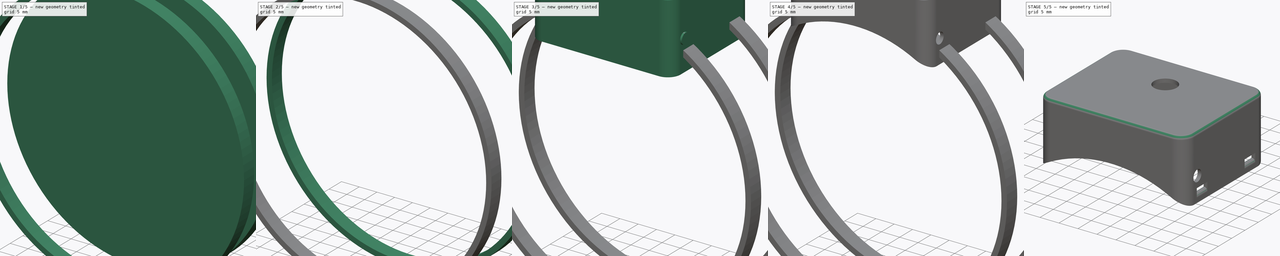
[diagram: build sequence overview — one tinted view per stage of 5, left to right]
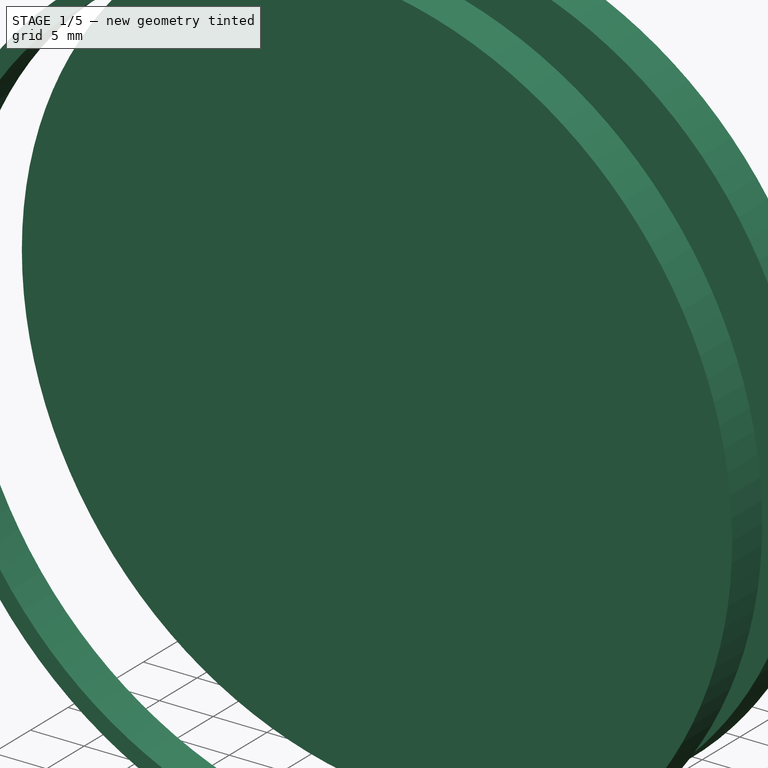
[diagram: stage 1 of 5 — iso view after this stage's code; geometry added in this stage tinted green]
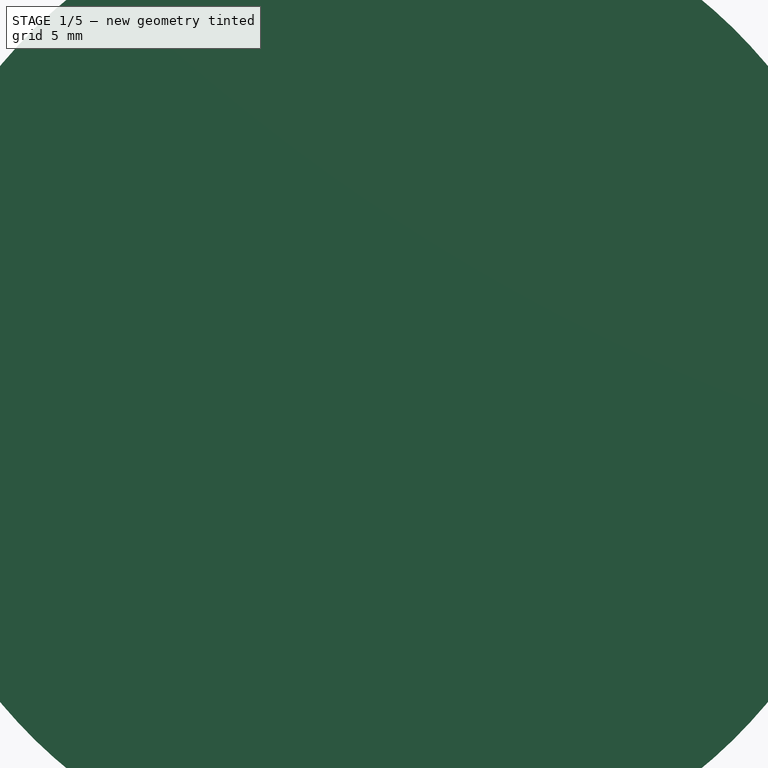
[diagram: stage 1 of 5 — front view after this stage's code; geometry added in this stage tinted green]
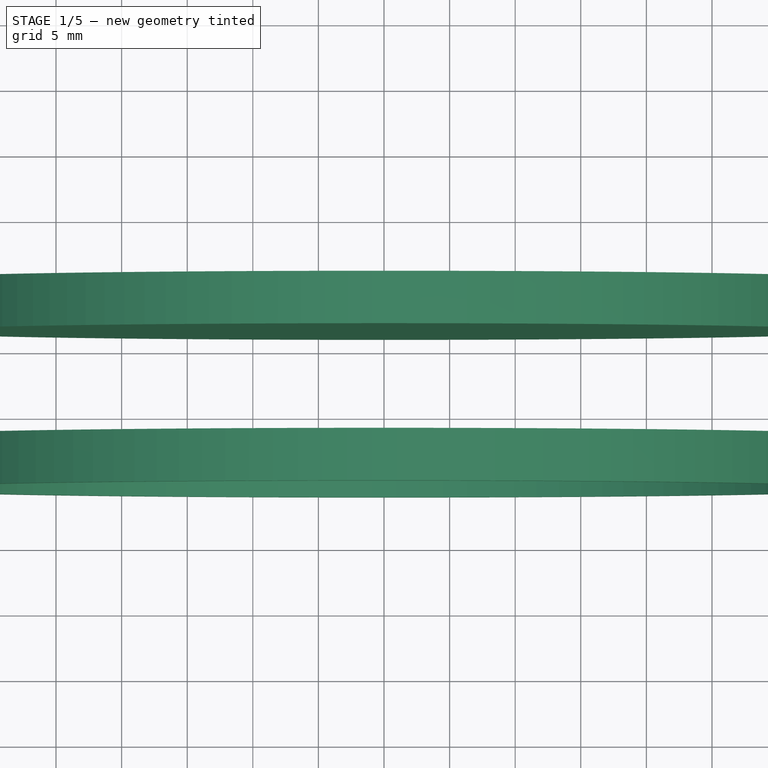
[diagram: stage 1 of 5 — top view after this stage's code; geometry added in this stage tinted green]
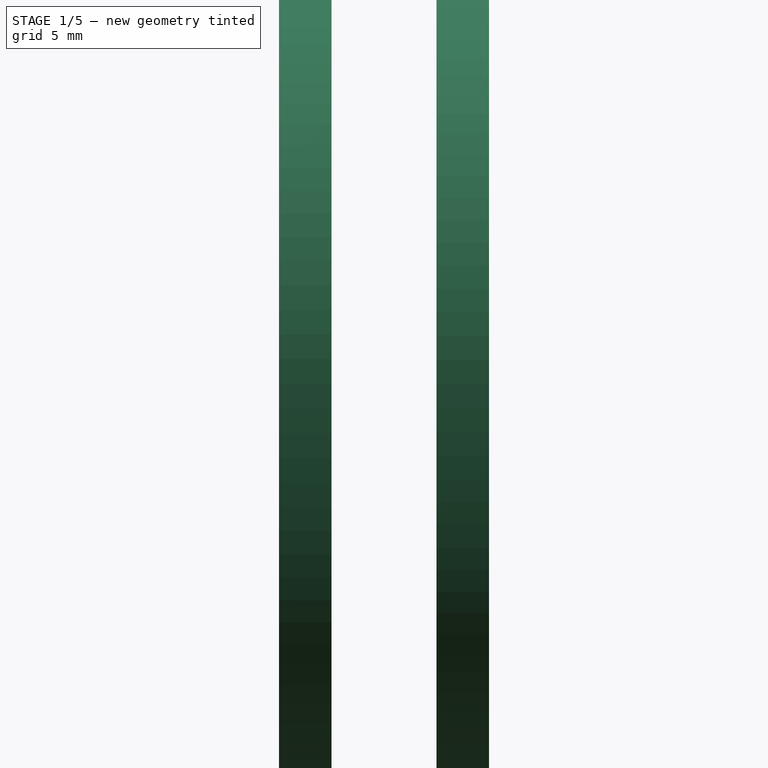
[diagram: stage 1 of 5 — right view after this stage's code; geometry added in this stage tinted green]
FCSTD DOCUMENT  (FreeCAD 0.18R16148 (Git))
Label: heng-dimmer-housing
License: All rights reserved
LicenseURL: http://en.wikipedia.org/wiki/All_rights_reserved
objects: Part::Cylinder×6, Part::Cut×5, Sketcher::SketchObject×3, Part::Fillet×3, PartDesign::Pad×2, PartDesign::Hole×1, PartDesign::Body×1, Part::MultiFuse×1
note: 25 computed .brp shape members not serialized (recipe doc carries the construction recipe); baked Part::Feature solids carry a one-line shape summary decoded from their .brp

FEATURE [Part::Cylinder] Cylinder003
  Angle = 360
  AttacherType = Attacher::AttachEngine3D
  Height = 4
  Placement = pos=(0,0,-45) rot=(1,0,0;1.5708rad)
  Radius = 36.5
FEATURE [Part::Cylinder] Cylinder004
  Angle = 360
  AttacherType = Attacher::AttachEngine3D
  Height = 4
  Placement = pos=(0,0,-45) rot=(1,0,0;1.5708rad)
  Radius = 36.5
FEATURE [Part::Cylinder] Cylinder005
  Angle = 360
  AttacherType = Attacher::AttachEngine3D
  Height = 4
  Placement = pos=(0,0,-45) rot=(1,0,0;1.5708rad)
  Radius = 38
FEATURE [Part::Cut] Cut003
  Base = -> Cylinder005
  Placement = pos=(0,-12,0) rot=(0,0,1;0rad)
  Tool = -> Cylinder004
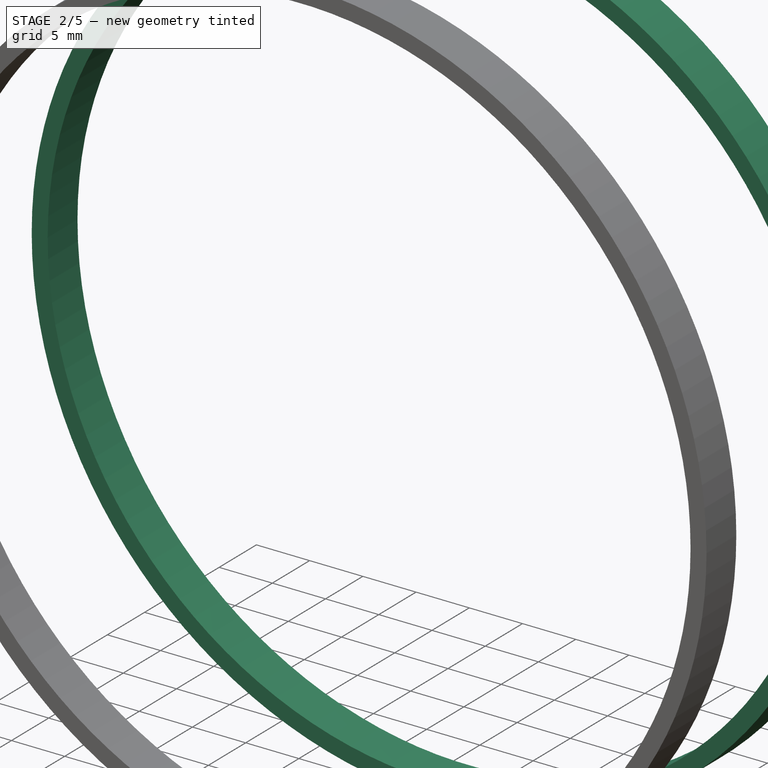
[diagram: stage 2 of 5 — iso view after this stage's code; geometry added in this stage tinted green]
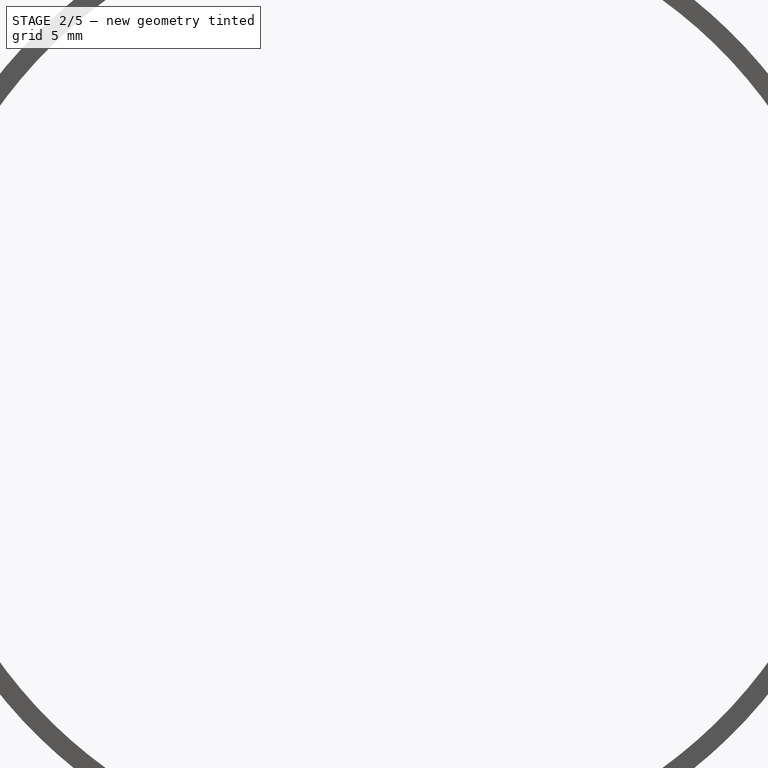
[diagram: stage 2 of 5 — front view after this stage's code; geometry added in this stage tinted green]
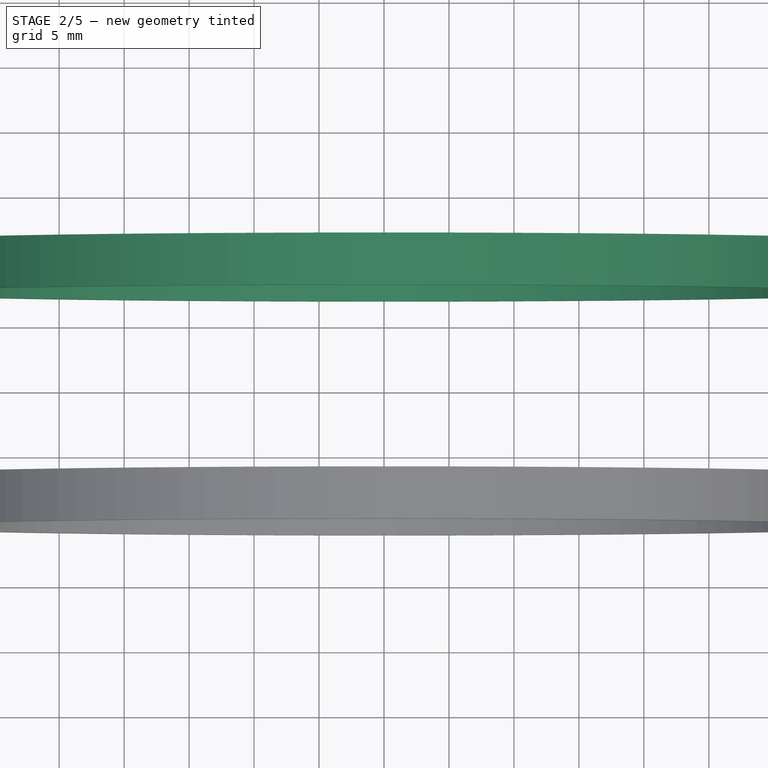
[diagram: stage 2 of 5 — top view after this stage's code; geometry added in this stage tinted green]
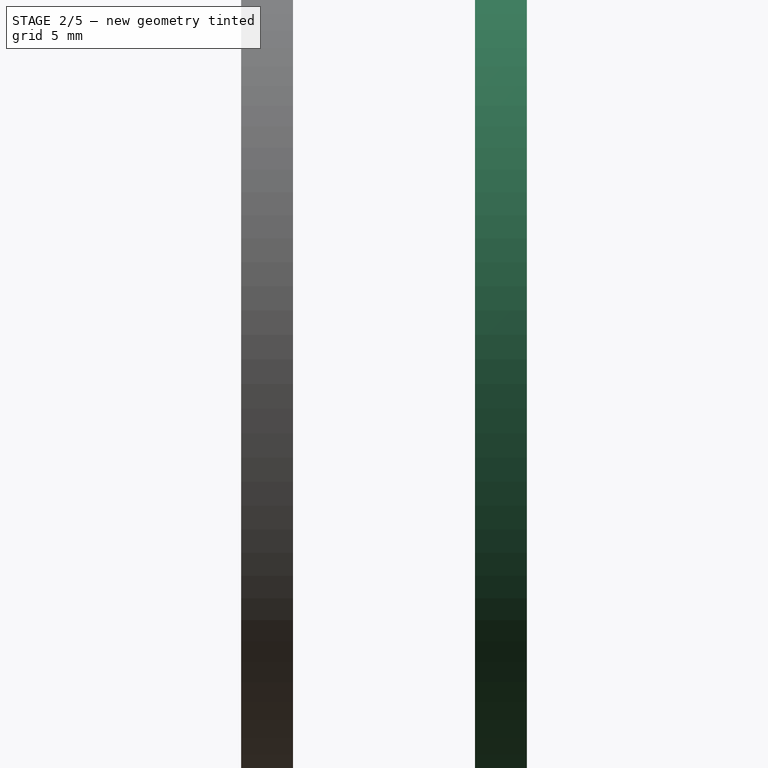
[diagram: stage 2 of 5 — right view after this stage's code; geometry added in this stage tinted green]
FEATURE [Part::Cylinder] Cylinder002
  Angle = 360
  AttacherType = Attacher::AttachEngine3D
  Height = 4
  Placement = pos=(0,0,-45) rot=(1,0,0;1.5708rad)
  Radius = 38
FEATURE [Part::Cut] Cut002
  Base = -> Cylinder002
  Placement = pos=(0,6,0) rot=(0,0,1;0rad)
  Tool = -> Cylinder003
FEATURE [Part::MultiFuse] Fusion
  Shapes = -> [Cut002,Cut003]
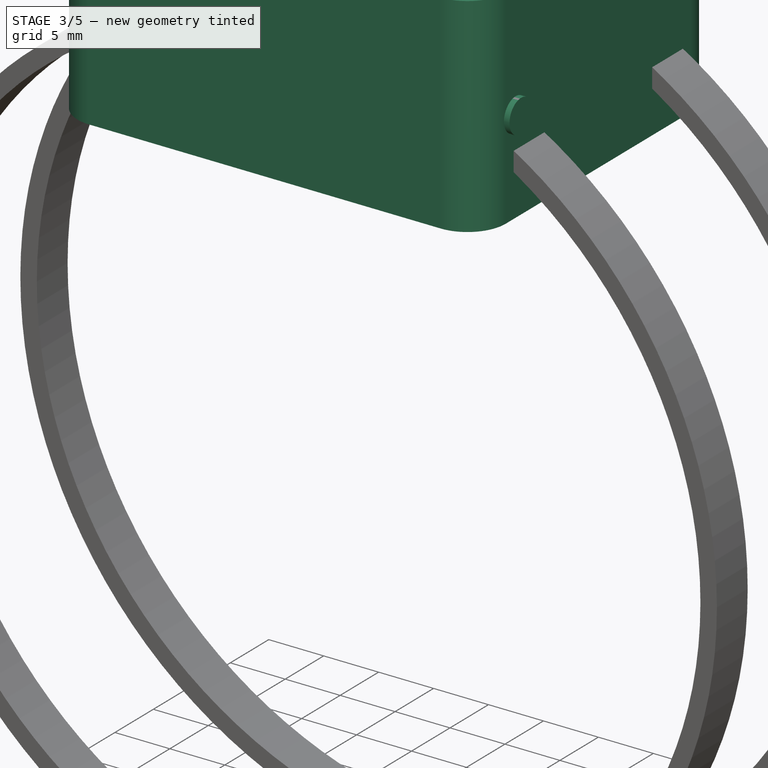
[diagram: stage 3 of 5 — iso view after this stage's code; geometry added in this stage tinted green]
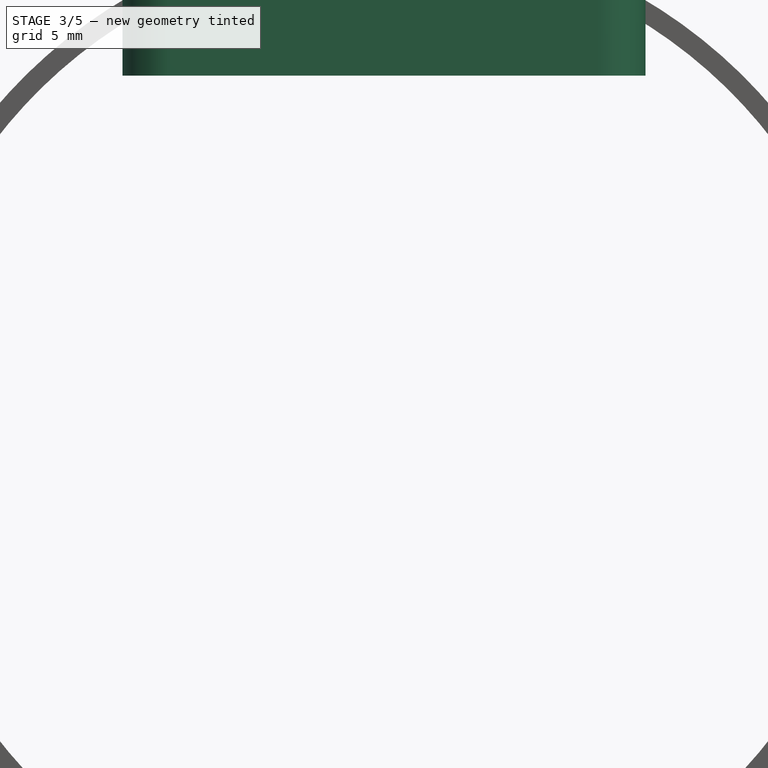
[diagram: stage 3 of 5 — front view after this stage's code; geometry added in this stage tinted green]
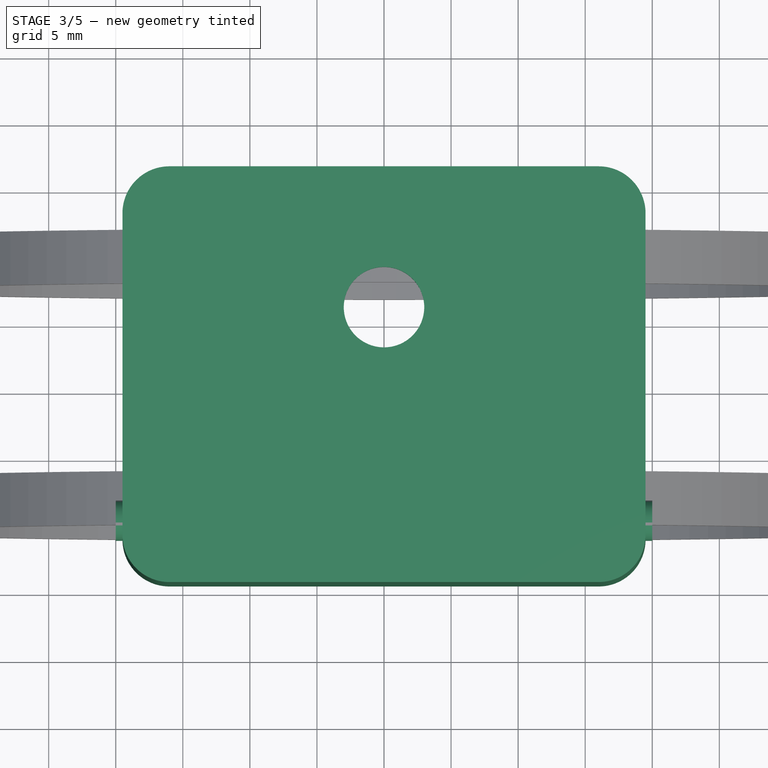
[diagram: stage 3 of 5 — top view after this stage's code; geometry added in this stage tinted green]
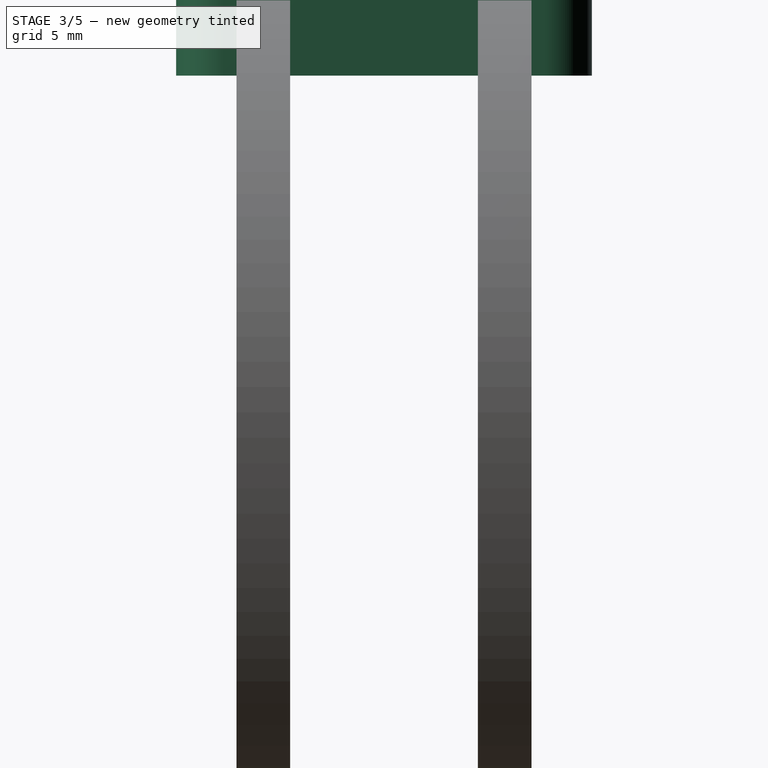
[diagram: stage 3 of 5 — right view after this stage's code; geometry added in this stage tinted green]
FEATURE [Sketcher::SketchObject] Sketch
  MapMode = 5
  Support = -> [XY_Plane]
  sketch-geometry (16):
    g0: ArcOfCircle [constr] CenterX=-16 CenterY=7 CenterZ=0 NormalX=0 NormalY=0 NormalZ=1 AngleXU=0 Radius=2 StartAngle=1.5708 EndAngle=3.14159
    g1: ArcOfCircle [constr] CenterX=16 CenterY=-17 CenterZ=0 NormalX=0 NormalY=0 NormalZ=1 AngleXU=0 Radius=2 StartAngle=4.71239 EndAngle=6.28319
    g2: ArcOfCircle [constr] CenterX=-16 CenterY=-17 CenterZ=0 NormalX=0 NormalY=0 NormalZ=1 AngleXU=0 Radius=2 StartAngle=3.14159 EndAngle=4.71239
    g3: LineSegment [constr] StartX=-16 StartY=9 StartZ=0 EndX=16 EndY=9 EndZ=0
    g4: LineSegment [constr] StartX=18 StartY=7 StartZ=0 EndX=18 EndY=-17 EndZ=0
    g5: LineSegment [constr] StartX=16 StartY=-19 StartZ=0 EndX=-16 EndY=-19 EndZ=0
    g6: LineSegment [constr] StartX=-18 StartY=-17 StartZ=0 EndX=-18 EndY=7 EndZ=0
    g7: ArcOfCircle [constr] CenterX=16 CenterY=7 CenterZ=0 NormalX=0 NormalY=0 NormalZ=1 AngleXU=0 Radius=2 StartAngle=2e-16 EndAngle=1.5708
    g8: ArcOfCircle CenterX=-16 CenterY=7 CenterZ=0 NormalX=0 NormalY=0 NormalZ=1 AngleXU=0 Radius=3.5 StartAngle=1.5708 EndAngle=3.14159
    g9: ArcOfCircle CenterX=16 CenterY=7 CenterZ=0 NormalX=0 NormalY=0 NormalZ=1 AngleXU=0 Radius=3.5 StartAngle=1e-16 EndAngle=1.5708
    g10: ArcOfCircle CenterX=16 CenterY=-17 CenterZ=0 NormalX=0 NormalY=0 NormalZ=1 AngleXU=0 Radius=3.5 StartAngle=4.71239 EndAngle=6.28319
    g11: ArcOfCircle CenterX=-16 CenterY=-17 CenterZ=0 NormalX=0 NormalY=0 NormalZ=1 AngleXU=0 Radius=3.5 StartAngle=3.14159 EndAngle=4.71239
    g12: LineSegment StartX=-19.5 StartY=7 StartZ=0 EndX=-19.5 EndY=-17 EndZ=0
    g13: LineSegment StartX=-16 StartY=-20.5 StartZ=0 EndX=16 EndY=-20.5 EndZ=0
    g14: LineSegment StartX=19.5 StartY=-17 StartZ=0 EndX=19.5 EndY=7 EndZ=0
    g15: LineSegment StartX=16 StartY=10.5 StartZ=0 EndX=-16 EndY=10.5 EndZ=0
  constraints (38):
    c: Horizontal(g3)
    c: Vertical(g4)
    c: Horizontal(g5)
    c: Tangent(g6,g0) = 1.5708
    c: Tangent(g3,g0) = 1.5708
    c: Tangent(g6,g2) = 1.5708
    c: Tangent(g5,g1) = 1.5708
    c: Tangent(g4,g1) = 1.5708
    c: Equal(g0,g2)
    c: Equal(g2,g1)
    c: Radius(g0) = 2
    c: Tangent(g5,g2) = 1.5708
    c: Vertical(g6)
    c: DistanceY(g2,g0) = 28
    c: DistanceY(g-1,g3) = 9
    c: DistanceX(g0,g-1) = 18
    c: Equal(g1,g7)
    c: Tangent(g7,g4) = 1.5708
    c: Tangent(g7,g3) = 1.5708
    c: DistanceX(g0,g4) = 36
    c: Coincident(g8,g0)
    c: Coincident(g9,g7)
    c: Coincident(g10,g1)
    c: Coincident(g11,g2)
    c: Coincident(g12,g8)
    c: Vertical(g12)
    c: Coincident(g13,g10)
    c: Horizontal(g13)
    c: Vertical(g14)
    c: Horizontal(g15)
    c: DistanceX(g8,g0) = 1.5
    c: Tangent(g15,g8) = -1.5708
    c: DistanceX(g4,g9) = 1.5
    c: Tangent(g15,g9) = -1.5708
    c: Tangent(g14,g10) = -1.5708
    c: Tangent(g13,g11) = -1.5708
    c: Tangent(g14,g9) = -1.5708
    c: Tangent(g12,g11) = -1.5708
FEATURE [PartDesign::Pad] Pad
  Length = 1
  Length2 = 100
  Profile = -> Sketch
  Type = 0
FEATURE [PartDesign::Hole] Hole
  BaseFeature = -> Pad
  Depth = 25
  DepthType = 0
  Diameter = 6
  DrillPoint = 1
  DrillPointAngle = 118
  HoleCutCountersinkAngle = 90
  HoleCutDepth = 0
  HoleCutDiameter = 0
  HoleCutType = 0
  ModelActualThread = false
  Profile = -> Sketch001
  Tapered = false
  TaperedAngle = 90
  ThreadAngle = 0
  ThreadClass = 0
  ThreadCutOffInner = 0
  ThreadCutOffOuter = 0
  ThreadDirection = 0
  ThreadFit = 0
  ThreadPitch = 0
  ThreadSize = 0
  ThreadType = 0
  Threaded = false
FEATURE [Sketcher::SketchObject] Sketch002
  ExternalGeometry = -> [Hole]
  MapMode = 5
  Placement = pos=(0,0,0) rot=(1,0,0;3.14159rad)
  Support = -> [Hole]
  sketch-geometry (16):
    g0: LineSegment StartX=-16 StartY=20.5 StartZ=0 EndX=16 EndY=20.5 EndZ=0
    g1: LineSegment StartX=19.5 StartY=17 StartZ=0 EndX=19.5 EndY=-7 EndZ=0
    g2: LineSegment StartX=16 StartY=-10.5 StartZ=0 EndX=-16 EndY=-10.5 EndZ=0
    g3: LineSegment StartX=-19.5 StartY=-7 StartZ=0 EndX=-19.5 EndY=17 EndZ=0
    g4: ArcOfCircle CenterX=-16 CenterY=17 CenterZ=0 NormalX=0 NormalY=0 NormalZ=1 AngleXU=0 Radius=3.5 StartAngle=1.5708 EndAngle=3.14159
    g5: ArcOfCircle CenterX=16 CenterY=17 CenterZ=0 NormalX=0 NormalY=0 NormalZ=1 AngleXU=0 Radius=3.5 StartAngle=0 EndAngle=1.5708
    g6: ArcOfCircle CenterX=16 CenterY=-7 CenterZ=0 NormalX=0 NormalY=0 NormalZ=1 AngleXU=0 Radius=3.5 StartAngle=4.71239 EndAngle=6.28319
    g7: ArcOfCircle CenterX=-16 CenterY=-7 CenterZ=0 NormalX=0 NormalY=0 NormalZ=1 AngleXU=0 Radius=3.5 StartAngle=3.14159 EndAngle=4.71239
    g8: ArcOfCircle CenterX=-16 CenterY=-7 CenterZ=0 NormalX=0 NormalY=0 NormalZ=1 AngleXU=0 Radius=2.5 StartAngle=3.14159 EndAngle=4.71239
    g9: ArcOfCircle CenterX=-16 CenterY=17 CenterZ=0 NormalX=0 NormalY=0 NormalZ=1 AngleXU=0 Radius=2.50001 StartAngle=1.56839 EndAngle=3.144
    g10: ArcOfCircle CenterX=16 CenterY=17 CenterZ=0 NormalX=0 NormalY=0 NormalZ=1 AngleXU=0 Radius=2.5 StartAngle=-9e-16 EndAngle=1.5708
    g11: ArcOfCircle CenterX=16 CenterY=-7 CenterZ=0 NormalX=0 NormalY=0 NormalZ=1 AngleXU=0 Radius=2.5 StartAngle=4.71239 EndAngle=6.28319
    g12: LineSegment StartX=-15.994 StartY=19.5 StartZ=0 EndX=16 EndY=19.5 EndZ=0
    g13: LineSegment StartX=18.5 StartY=17 StartZ=0 EndX=18.5 EndY=-7 EndZ=0
    g14: LineSegment StartX=16 StartY=-9.5 StartZ=0 EndX=-16 EndY=-9.5 EndZ=0
    g15: LineSegment StartX=-18.5 StartY=-7 StartZ=0 EndX=-18.5 EndY=16.994 EndZ=0
  constraints (37):
    c: Coincident(g0,g-3)
    c: Coincident(g0,g-4)
    c: Coincident(g1,g-4)
    c: Coincident(g1,g-5)
    c: Coincident(g2,g-5)
    c: Coincident(g2,g-6)
    c: Coincident(g3,g-6)
    c: Coincident(g3,g-3)
    c: Coincident(g4,g-3)
    c: Coincident(g4,g3)
    c: Coincident(g4,g0)
    c: Coincident(g5,g-4)
    c: Coincident(g5,g0)
    c: Coincident(g5,g1)
    c: Coincident(g6,g-5)
    c: Coincident(g6,g1)
    c: Coincident(g6,g2)
    c: Coincident(g7,g-6)
    c: Coincident(g7,g2)
    c: Coincident(g7,g3)
    c: Coincident(g8,g7)
    c: Coincident(g9,g4)
    c: Coincident(g10,g5)
    c: Coincident(g11,g6)
    c: Coincident(g12,g9)
    c: Horizontal(g12)
    c: Vertical(g13)
    c: Horizontal(g14)
    c: Coincident(g15,g9)
    c: Vertical(g15)
    c: DistanceY(g9,g0) = 1
    c: Tangent(g12,g10) = 1.5708
    c: Tangent(g13,g10) = 1.5708
    c: Tangent(g13,g11) = 1.5708
    c: Tangent(g14,g11) = 1.5708
    c: Tangent(g14,g8) = 1.5708
    c: Tangent(g15,g8) = 1.5708
FEATURE [PartDesign::Pad] Pad001
  BaseFeature = -> Hole
  Length = 18
  Length2 = 100
  Profile = -> Sketch002
  Type = 0
FEATURE [Part::Cylinder] Cylinder001
  Angle = 360
  AttacherType = Attacher::AttachEngine3D
  Height = 40
  Placement = pos=(-20,-15.75,-9.5) rot=(0,1,0;1.5708rad)
  Radius = 1.5
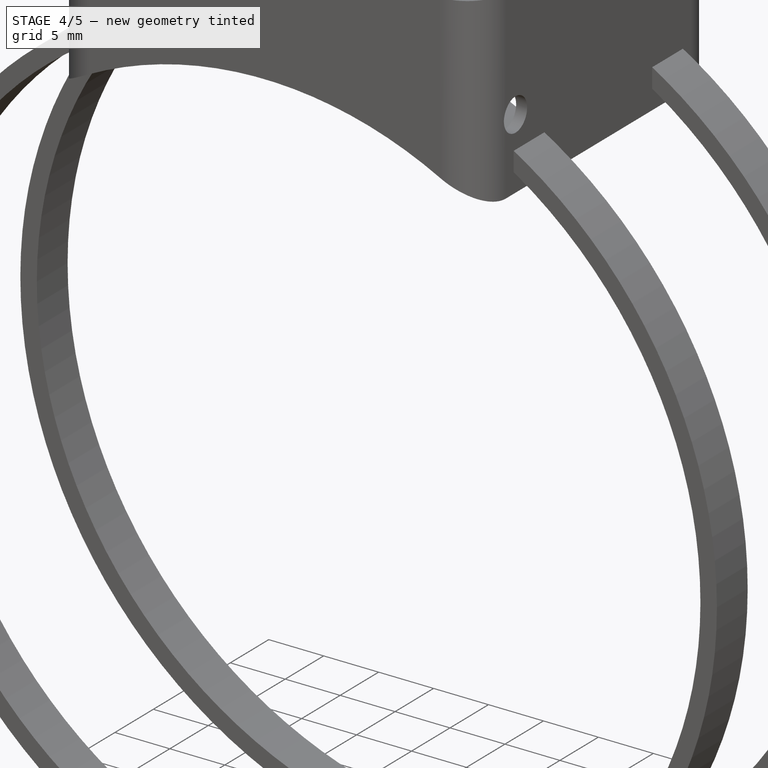
[diagram: stage 4 of 5 — iso view after this stage's code; geometry added in this stage tinted green]
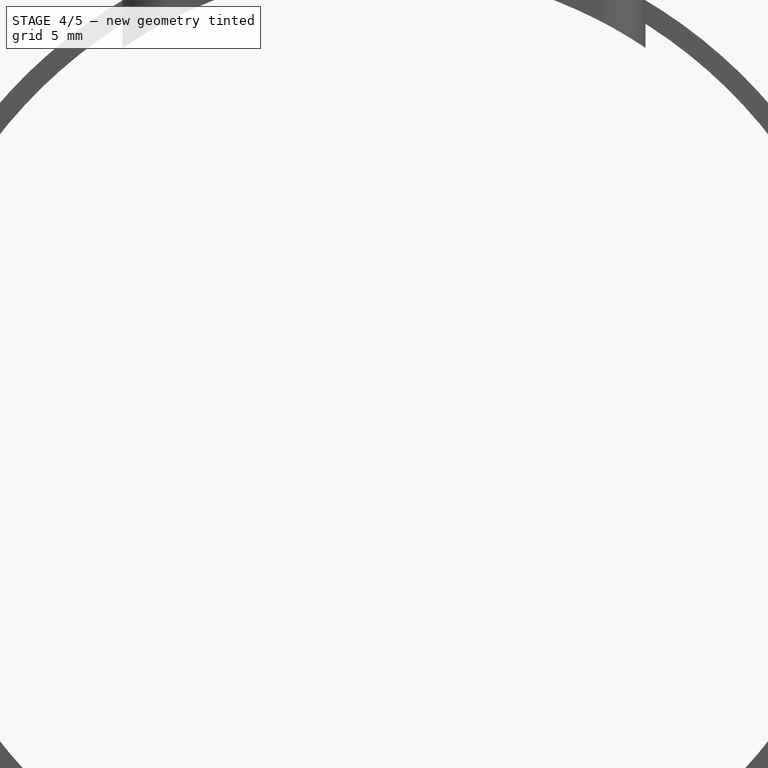
[diagram: stage 4 of 5 — front view after this stage's code; geometry added in this stage tinted green]
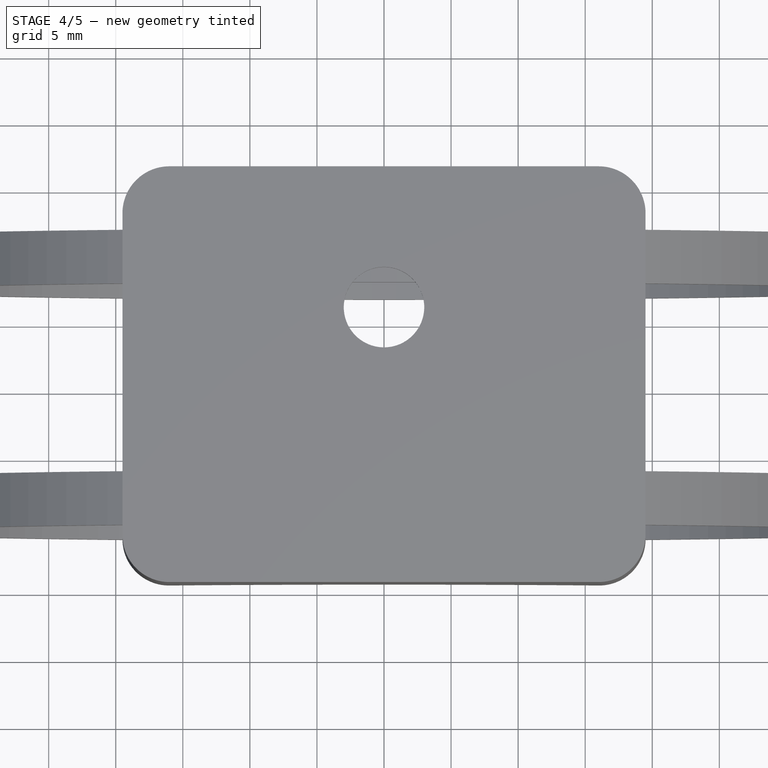
[diagram: stage 4 of 5 — top view after this stage's code; geometry added in this stage tinted green]
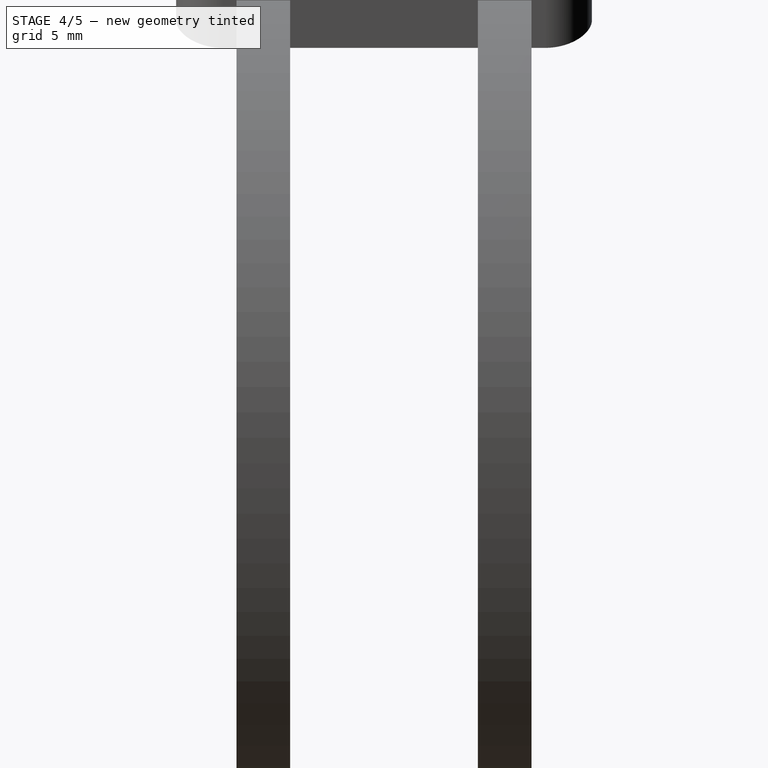
[diagram: stage 4 of 5 — right view after this stage's code; geometry added in this stage tinted green]
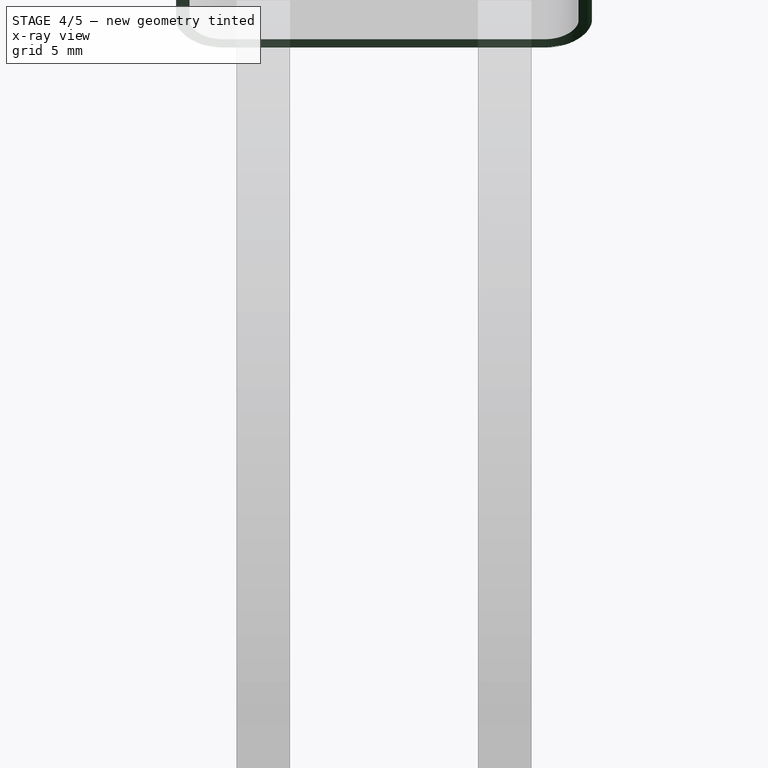
[diagram: stage 4 of 5 — x-ray composite at the right view; earlier geometry ghosted, this stage's added geometry solid]
FEATURE [Sketcher::SketchObject] Sketch001
  MapMode = 5
  Placement = pos=(0,0,0) rot=(1,0,0;3.14159rad)
  Support = -> [Pad]
  sketch-geometry (1):
    g0: Circle CenterX=0 CenterY=0 CenterZ=0 NormalX=0 NormalY=0 NormalZ=1 AngleXU=0 Radius=4
  constraints (2):
    c: Coincident(g0,g-1)
    c: Radius(g0) = 4
FEATURE [Part::Cylinder] Cylinder
  Angle = 360
  AttacherType = Attacher::AttachEngine3D
  Height = 35
  Placement = pos=(0,12,-45) rot=(1,0,0;1.5708rad)
  Radius = 35
FEATURE [PartDesign::Body] Body
  Group = -> [Sketch,Pad,Sketch001,Hole,Sketch002,Pad001]
  Origin = -> Origin
  Tip = -> Pad001
FEATURE [Part::Cut] Cut
  Base = -> Body
  Tool = -> Cylinder
FEATURE [Part::Cut] Cut001
  Base = -> Cut
  Tool = -> Cylinder001
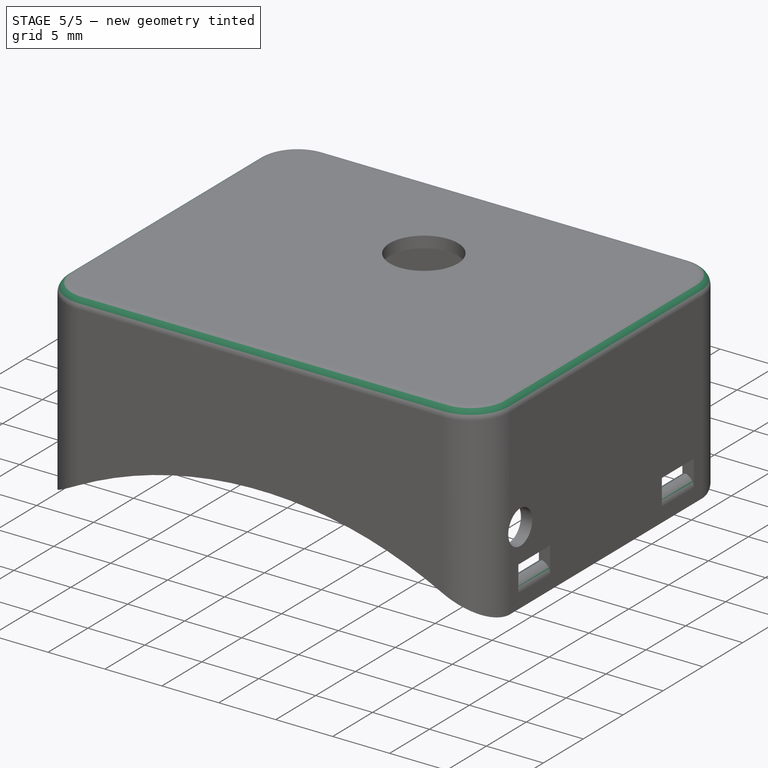
[diagram: stage 5 of 5 — iso view after this stage's code; geometry added in this stage tinted green]
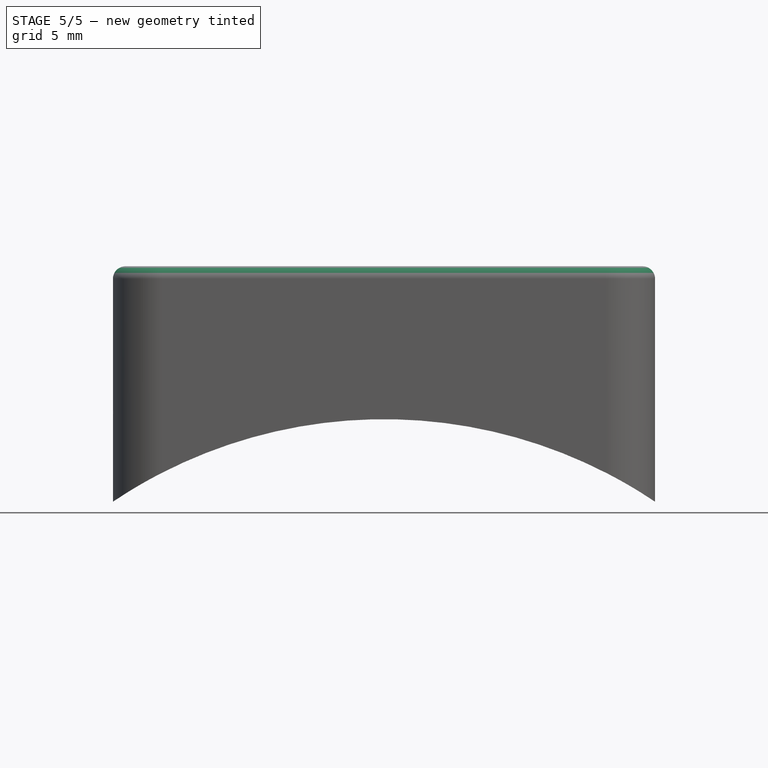
[diagram: stage 5 of 5 — front view after this stage's code; geometry added in this stage tinted green]
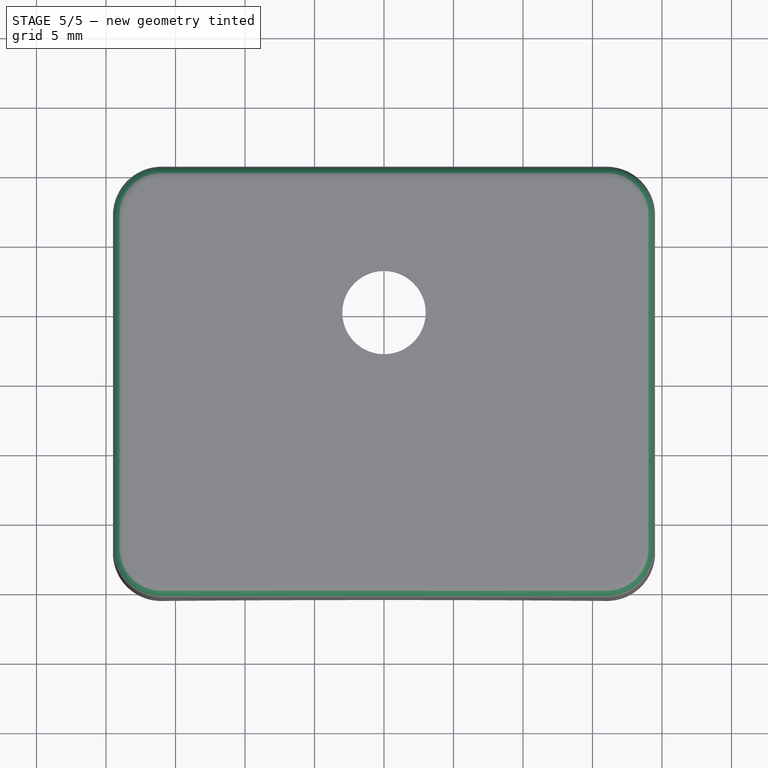
[diagram: stage 5 of 5 — top view after this stage's code; geometry added in this stage tinted green]
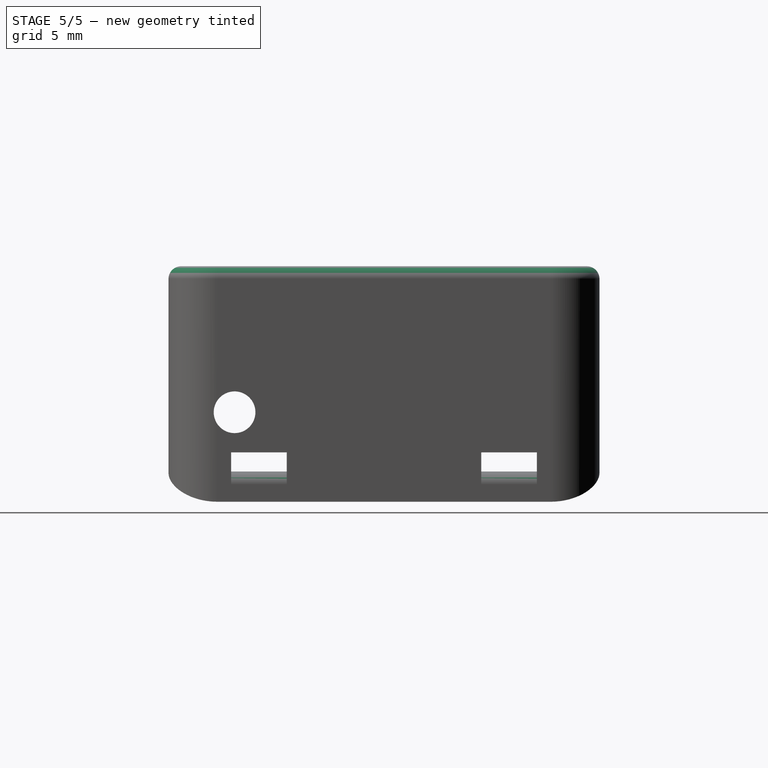
[diagram: stage 5 of 5 — right view after this stage's code; geometry added in this stage tinted green]
FEATURE [Part::Fillet] Fillet
  Base = -> Cut001
  Edges = 2 edges: [Edge16 r=0.9,Edge70 r=1]
FEATURE [Part::Cut] Cut004
  Base = -> Fillet
  Tool = -> Fusion
FEATURE [Part::Fillet] Fillet001
  Base = -> Cut004
  Edges = 4 edges r=1: [Edge51,Edge55,Edge79,Edge83]
FEATURE [Part::Fillet] Fillet002
  Base = -> Fillet001
  Edges = 4 edges r=0.3: [Edge67,Edge72,Edge119,Edge123]
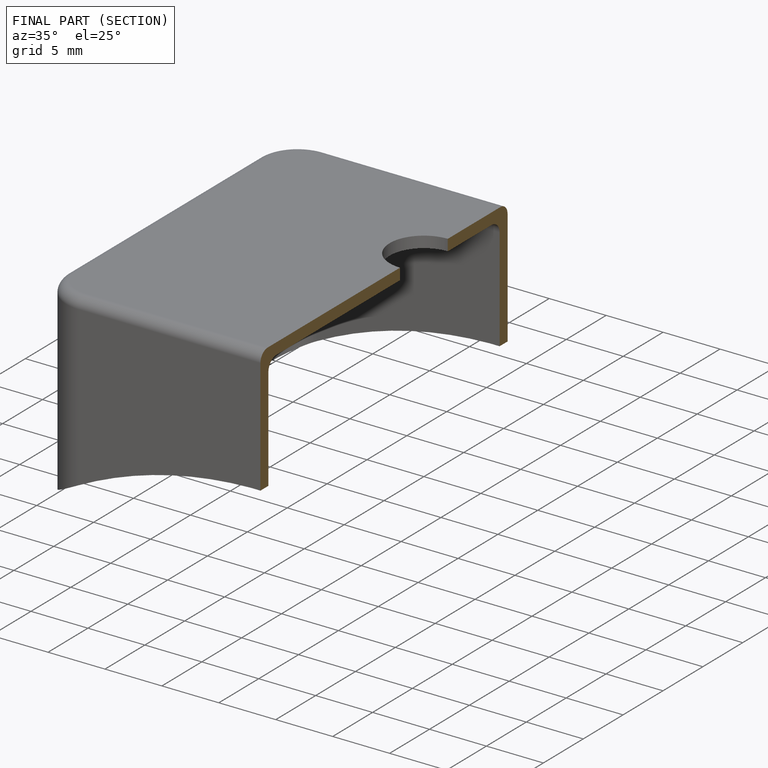
[diagram: finished part — half-section view (interior)]
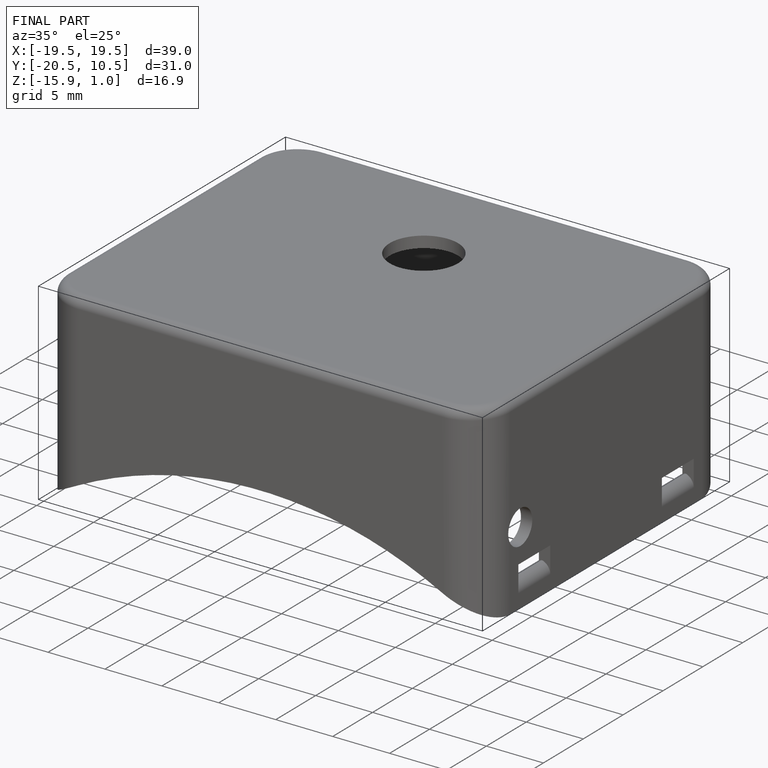
[diagram: finished part — iso view with bounding-box wireframe]
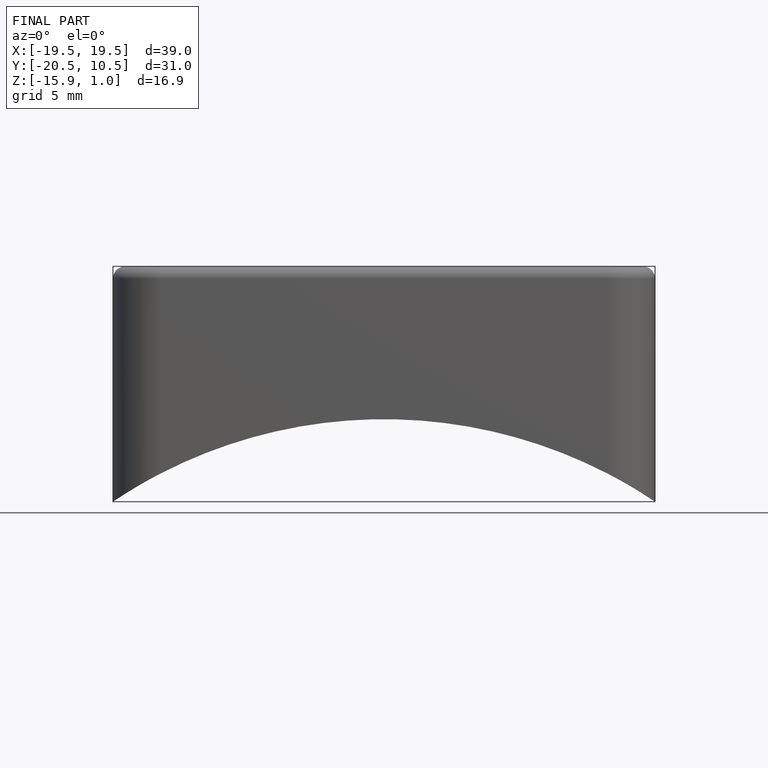
[diagram: finished part — front view with bounding-box wireframe]
